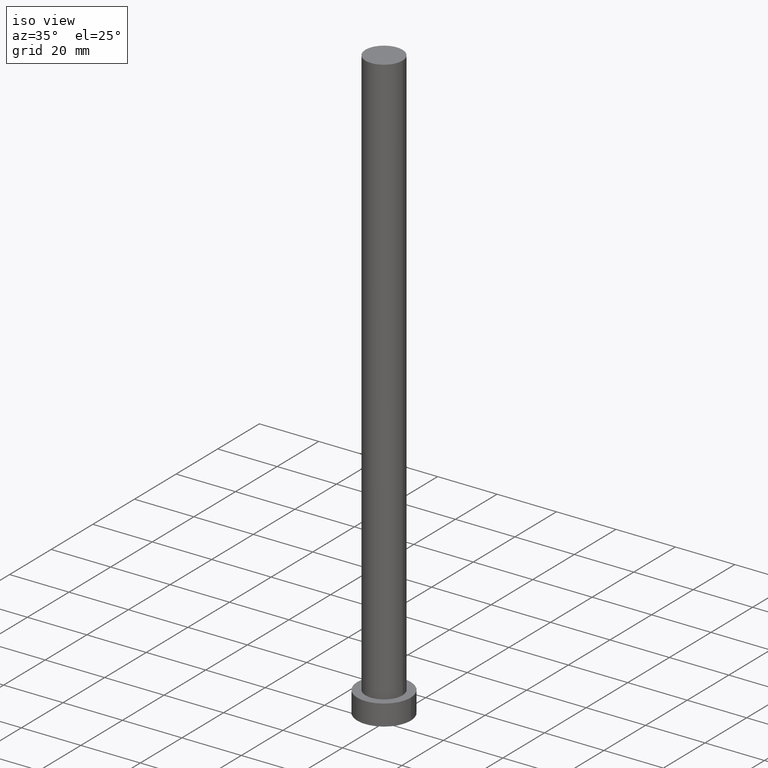
[diagram: clean part render]
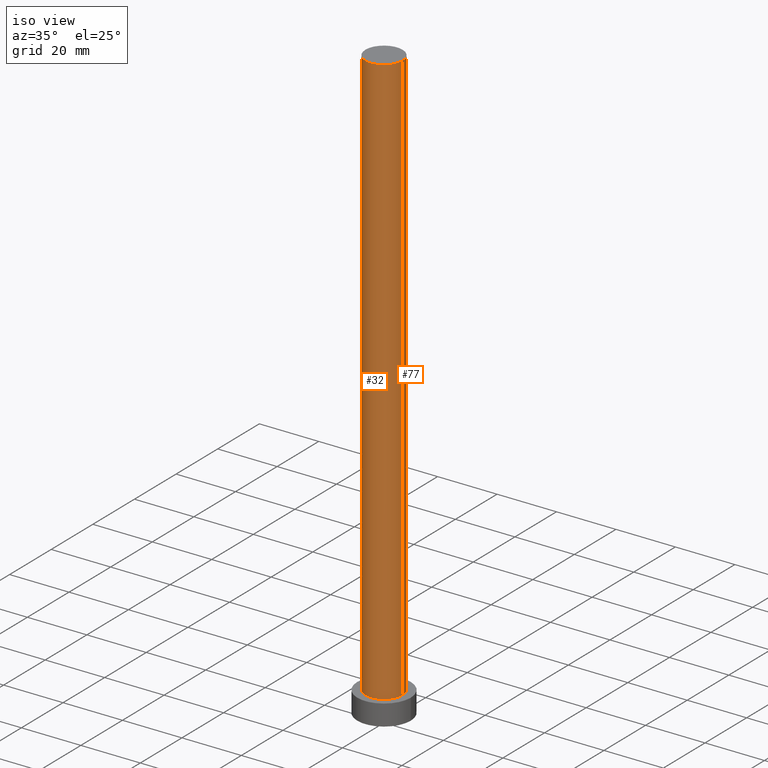
[diagram: same view with one multi-face feature highlighted, each face labeled with its STEP entity id]
A machine part, iso view. The highlighted faces form ONE feature: a constant-radius fillet chain: 2 tangent blend faces with common blend radius 6.25 mm. The faces share edges in the B-rep.
Their STEP definitions:
[1] entity #32 (Cylinder):
#21 = CIRCLE ( 'NONE', #204, 6.250000000000000000 ) ;
#32 = ADVANCED_FACE ( 'NONE', ( #213 ), #153, .T. ) ;
#35 = DIRECTION ( 'NONE',  ( 0.000000000000000000, 0.000000000000000000, 1.000000000000000000 ) ) ;
#36 = EDGE_CURVE ( 'NONE', #79, #210, #202, .T. ) ;
#37 = DIRECTION ( 'NONE',  ( 1.000000000000000000, 0.000000000000000000, 0.000000000000000000 ) ) ;
#50 = DIRECTION ( 'NONE',  ( -0.000000000000000000, -0.000000000000000000, -1.000000000000000000 ) ) ;
#59 = EDGE_LOOP ( 'NONE', ( #96, #171, #173, #192 ) ) ;
#72 = CARTESIAN_POINT ( 'NONE',  ( 0.000000000000000000, 0.000000000000000000, 200.0000000000000000 ) ) ;
#73 = CARTESIAN_POINT ( 'NONE',  ( 0.000000000000000000, 0.000000000000000000, 200.0000000000000000 ) ) ;
#78 = AXIS2_PLACEMENT_3D ( 'NONE', #72, #35, #37 ) ;
#79 = VERTEX_POINT ( 'NONE', #138 ) ;
#81 = CARTESIAN_POINT ( 'NONE',  ( 0.000000000000000000, 0.000000000000000000, 7.000000000000000000 ) ) ;
#95 = VERTEX_POINT ( 'NONE', #217 ) ;
#96 = ORIENTED_EDGE ( 'NONE', *, *, #233, .F. ) ;
#115 = DIRECTION ( 'NONE',  ( -0.000000000000000000, -0.000000000000000000, -1.000000000000000000 ) ) ;
#117 = VECTOR ( 'NONE', #50, 1000.000000000000000 ) ;
#120 = EDGE_CURVE ( 'NONE', #79, #95, #243, .T. ) ;
#121 = CARTESIAN_POINT ( 'NONE',  ( 6.250000000000000000, 7.654042494670957606E-16, 200.0000000000000000 ) ) ;
#122 = CARTESIAN_POINT ( 'NONE',  ( -6.250000000000000000, 0.000000000000000000, 200.0000000000000000 ) ) ;
#132 = VECTOR ( 'NONE', #157, 1000.000000000000000 ) ;
#138 = CARTESIAN_POINT ( 'NONE',  ( -6.250000000000000000, 0.000000000000000000, 200.0000000000000000 ) ) ;
#153 = CYLINDRICAL_SURFACE ( 'NONE', #187, 6.250000000000000000 ) ;
#157 = DIRECTION ( 'NONE',  ( -0.000000000000000000, -0.000000000000000000, -1.000000000000000000 ) ) ;
#158 = LINE ( 'NONE', #121, #132 ) ;
#162 = CARTESIAN_POINT ( 'NONE',  ( 6.250000000000000000, 7.654042494670957606E-16, 7.000000000000000000 ) ) ;
#171 = ORIENTED_EDGE ( 'NONE', *, *, #36, .F. ) ;
#173 = ORIENTED_EDGE ( 'NONE', *, *, #120, .T. ) ;
#178 = DIRECTION ( 'NONE',  ( 0.000000000000000000, 0.000000000000000000, 1.000000000000000000 ) ) ;
#187 = AXIS2_PLACEMENT_3D ( 'NONE', #73, #115, #208 ) ;
#192 = ORIENTED_EDGE ( 'NONE', *, *, #205, .T. ) ;
#202 = CIRCLE ( 'NONE', #78, 6.250000000000000000 ) ;
#204 = AXIS2_PLACEMENT_3D ( 'NONE', #81, #178, #219 ) ;
#205 = EDGE_CURVE ( 'NONE', #95, #251, #21, .T. ) ;
#208 = DIRECTION ( 'NONE',  ( -1.000000000000000000, 0.000000000000000000, 0.000000000000000000 ) ) ;
#210 = VERTEX_POINT ( 'NONE', #241 ) ;
#213 = FACE_OUTER_BOUND ( 'NONE', #59, .T. ) ;
#217 = CARTESIAN_POINT ( 'NONE',  ( -6.250000000000000000, 0.000000000000000000, 7.000000000000000000 ) ) ;
#219 = DIRECTION ( 'NONE',  ( 1.000000000000000000, 0.000000000000000000, 0.000000000000000000 ) ) ;
#233 = EDGE_CURVE ( 'NONE', #210, #251, #158, .T. ) ;
#241 = CARTESIAN_POINT ( 'NONE',  ( 6.250000000000000000, 7.654042494670957606E-16, 200.0000000000000000 ) ) ;
#243 = LINE ( 'NONE', #122, #117 ) ;
#251 = VERTEX_POINT ( 'NONE', #162 ) ;
[2] entity #77 (Cylinder):
#1 = DIRECTION ( 'NONE',  ( 0.000000000000000000, 0.000000000000000000, 1.000000000000000000 ) ) ;
#10 = CIRCLE ( 'NONE', #252, 6.250000000000000000 ) ;
#16 = ORIENTED_EDGE ( 'NONE', *, *, #233, .T. ) ;
#24 = CARTESIAN_POINT ( 'NONE',  ( 0.000000000000000000, 0.000000000000000000, 200.0000000000000000 ) ) ;
#50 = DIRECTION ( 'NONE',  ( -0.000000000000000000, -0.000000000000000000, -1.000000000000000000 ) ) ;
#56 = ORIENTED_EDGE ( 'NONE', *, *, #120, .F. ) ;
#62 = DIRECTION ( 'NONE',  ( -0.000000000000000000, -0.000000000000000000, -1.000000000000000000 ) ) ;
#66 = DIRECTION ( 'NONE',  ( 1.000000000000000000, 0.000000000000000000, 0.000000000000000000 ) ) ;
#70 = EDGE_CURVE ( 'NONE', #210, #79, #149, .T. ) ;
#77 = ADVANCED_FACE ( 'NONE', ( #136 ), #197, .T. ) ;
#79 = VERTEX_POINT ( 'NONE', #138 ) ;
#95 = VERTEX_POINT ( 'NONE', #217 ) ;
#103 = DIRECTION ( 'NONE',  ( 1.000000000000000000, 0.000000000000000000, 0.000000000000000000 ) ) ;
#112 = CARTESIAN_POINT ( 'NONE',  ( 0.000000000000000000, 0.000000000000000000, 200.0000000000000000 ) ) ;
#117 = VECTOR ( 'NONE', #50, 1000.000000000000000 ) ;
#120 = EDGE_CURVE ( 'NONE', #79, #95, #243, .T. ) ;
#121 = CARTESIAN_POINT ( 'NONE',  ( 6.250000000000000000, 7.654042494670957606E-16, 200.0000000000000000 ) ) ;
#122 = CARTESIAN_POINT ( 'NONE',  ( -6.250000000000000000, 0.000000000000000000, 200.0000000000000000 ) ) ;
#130 = ORIENTED_EDGE ( 'NONE', *, *, #70, .F. ) ;
#132 = VECTOR ( 'NONE', #157, 1000.000000000000000 ) ;
#136 = FACE_OUTER_BOUND ( 'NONE', #229, .T. ) ;
#138 = CARTESIAN_POINT ( 'NONE',  ( -6.250000000000000000, 0.000000000000000000, 200.0000000000000000 ) ) ;
#139 = AXIS2_PLACEMENT_3D ( 'NONE', #112, #1, #66 ) ;
#140 = EDGE_CURVE ( 'NONE', #251, #95, #10, .T. ) ;
#149 = CIRCLE ( 'NONE', #139, 6.250000000000000000 ) ;
#152 = ORIENTED_EDGE ( 'NONE', *, *, #140, .T. ) ;
#157 = DIRECTION ( 'NONE',  ( -0.000000000000000000, -0.000000000000000000, -1.000000000000000000 ) ) ;
#158 = LINE ( 'NONE', #121, #132 ) ;
#162 = CARTESIAN_POINT ( 'NONE',  ( 6.250000000000000000, 7.654042494670957606E-16, 7.000000000000000000 ) ) ;
#175 = CARTESIAN_POINT ( 'NONE',  ( 0.000000000000000000, 0.000000000000000000, 7.000000000000000000 ) ) ;
#176 = DIRECTION ( 'NONE',  ( -1.000000000000000000, 0.000000000000000000, 0.000000000000000000 ) ) ;
#197 = CYLINDRICAL_SURFACE ( 'NONE', #228, 6.250000000000000000 ) ;
#200 = DIRECTION ( 'NONE',  ( 0.000000000000000000, 0.000000000000000000, 1.000000000000000000 ) ) ;
#210 = VERTEX_POINT ( 'NONE', #241 ) ;
#217 = CARTESIAN_POINT ( 'NONE',  ( -6.250000000000000000, 0.000000000000000000, 7.000000000000000000 ) ) ;
#228 = AXIS2_PLACEMENT_3D ( 'NONE', #24, #62, #176 ) ;
#229 = EDGE_LOOP ( 'NONE', ( #130, #16, #152, #56 ) ) ;
#233 = EDGE_CURVE ( 'NONE', #210, #251, #158, .T. ) ;
#241 = CARTESIAN_POINT ( 'NONE',  ( 6.250000000000000000, 7.654042494670957606E-16, 200.0000000000000000 ) ) ;
#243 = LINE ( 'NONE', #122, #117 ) ;
#251 = VERTEX_POINT ( 'NONE', #162 ) ;
#252 = AXIS2_PLACEMENT_3D ( 'NONE', #175, #200, #103 ) ;